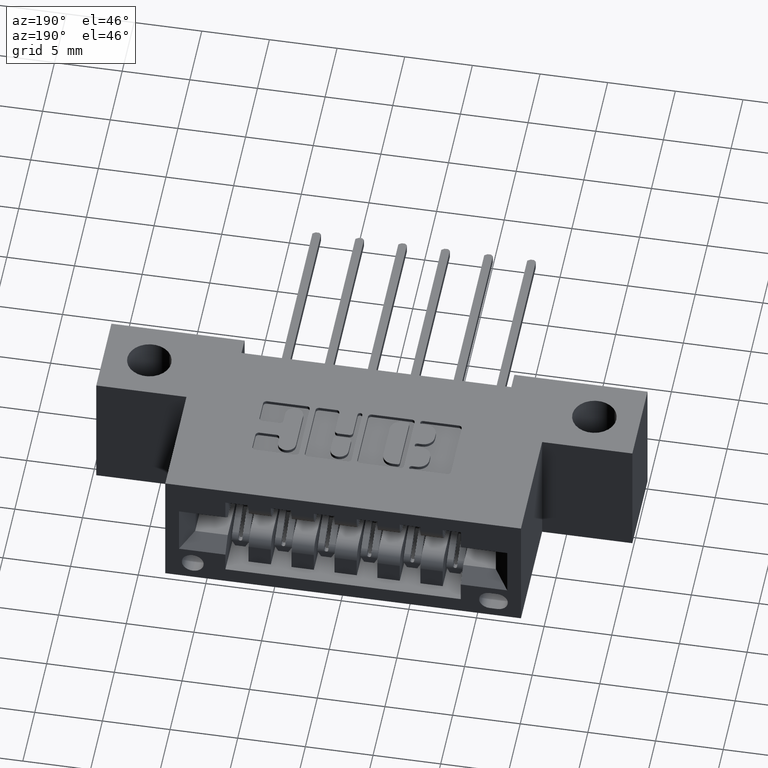
[diagram: clean part render]
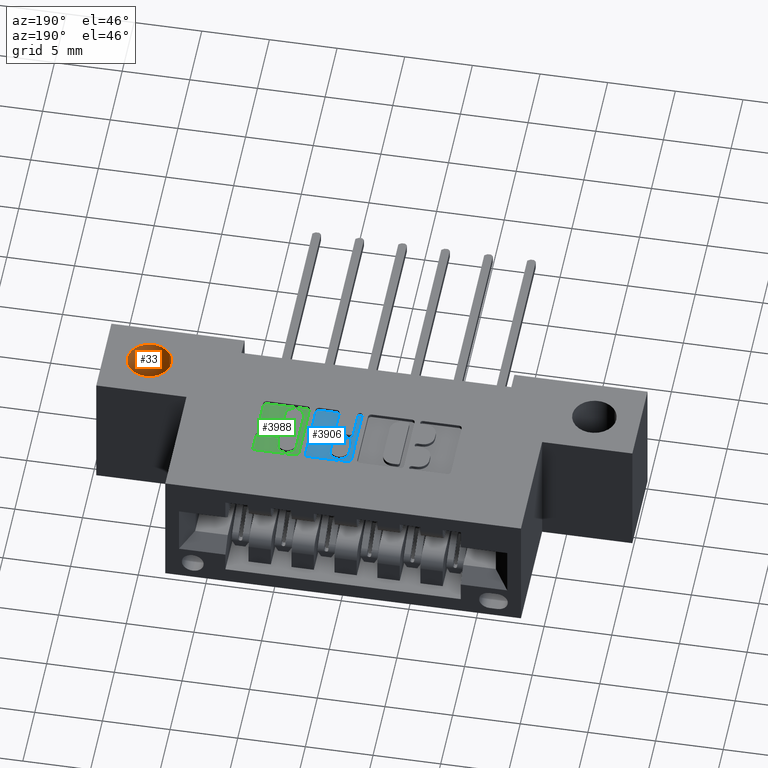
[diagram: same view with three faces highlighted in distinct colors, each labeled with its STEP entity id]
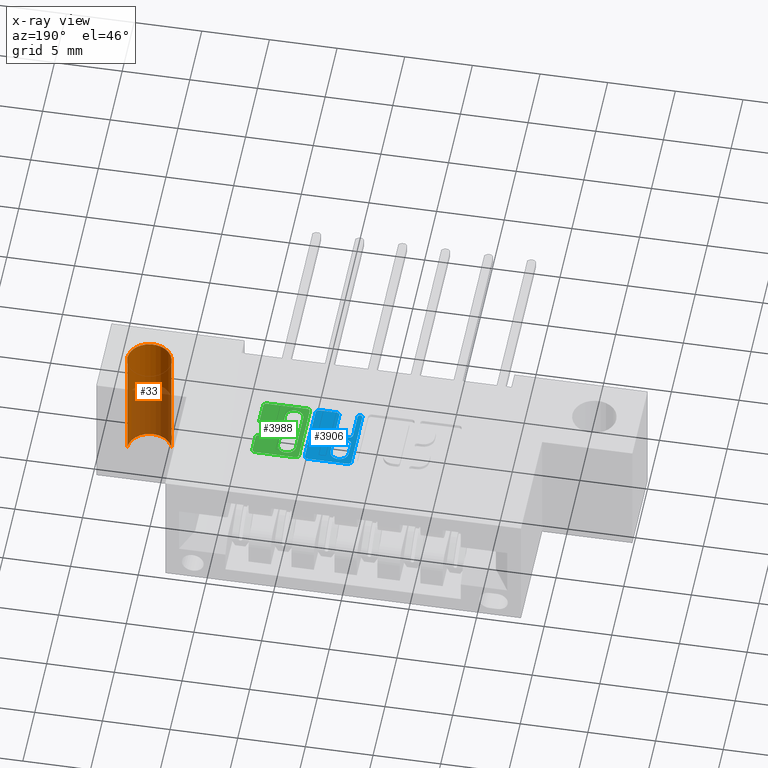
[diagram: x-ray of the same camera — body ghosted, the three highlighted faces saturated]
A machine part, auxiliary view with three faces highlighted in distinct colors.
The next image is the same camera in x-ray (body ghosted, the three faces saturated) — at least one of them is partly hidden behind the body in this view.
Their STEP definitions:

[orange] entity #33 — the highlighted cylindrical surface (edge-blend (fillet) strip) has radius 1.6256 mm, axis along (0, 0, 1).
#33 = ADVANCED_FACE ( 'NONE', ( #3620 ), #5655, .F. ) ;
#57 = ORIENTED_EDGE ( 'NONE', *, *, #1696, .F. ) ;
#64 = DIRECTION ( 'NONE',  ( -0.0000000000000000000, -0.0000000000000000000, 1.000000000000000000 ) ) ;
#182 = EDGE_CURVE ( 'NONE', #1452, #8396, #5912, .T. ) ;
#407 = CARTESIAN_POINT ( 'NONE',  ( 1.363499999999999268, 0.1250000000000001943, 0.0000000000000000000 ) ) ;
#461 = AXIS2_PLACEMENT_3D ( 'NONE', #7041, #1009, #3669 ) ;
#683 = DIRECTION ( 'NONE',  ( -0.0000000000000000000, -0.0000000000000000000, 1.000000000000000000 ) ) ;
#698 = CARTESIAN_POINT ( 'NONE',  ( 1.427499999999999991, 0.1250000000000001943, 0.0000000000000000000 ) ) ;
#965 = DIRECTION ( 'NONE',  ( 0.0000000000000000000, 0.0000000000000000000, 1.000000000000000000 ) ) ;
#1009 = DIRECTION ( 'NONE',  ( -0.0000000000000000000, -0.0000000000000000000, 1.000000000000000000 ) ) ;
#1082 = ORIENTED_EDGE ( 'NONE', *, *, #1276, .T. ) ;
#1243 = LINE ( 'NONE', #5312, #2982 ) ;
#1276 = EDGE_CURVE ( 'NONE', #5329, #1452, #1243, .T. ) ;
#1452 = VERTEX_POINT ( 'NONE', #407 ) ;
#1696 = EDGE_CURVE ( 'NONE', #5329, #6420, #6608, .T. ) ;
#2114 = ORIENTED_EDGE ( 'NONE', *, *, #2325, .F. ) ;
#2325 = EDGE_CURVE ( 'NONE', #6420, #8396, #2572, .T. ) ;
#2394 = DIRECTION ( 'NONE',  ( -1.000000000000000000, 0.0000000000000000000, 0.0000000000000000000 ) ) ;
#2466 = ORIENTED_EDGE ( 'NONE', *, *, #182, .T. ) ;
#2572 = LINE ( 'NONE', #6665, #7337 ) ;
#2845 = DIRECTION ( 'NONE',  ( 0.0000000000000000000, 0.0000000000000000000, 1.000000000000000000 ) ) ;
#2973 = AXIS2_PLACEMENT_3D ( 'NONE', #698, #2845, #8088 ) ;
#2982 = VECTOR ( 'NONE', #64, 39.37007874015748143 ) ;
#3620 = FACE_OUTER_BOUND ( 'NONE', #4115, .T. ) ;
#3669 = DIRECTION ( 'NONE',  ( 1.000000000000000000, 0.0000000000000000000, 0.0000000000000000000 ) ) ;
#3778 = CARTESIAN_POINT ( 'NONE',  ( 1.491500000000000714, 0.1250000000000001943, -0.3700000000000001621 ) ) ;
#4115 = EDGE_LOOP ( 'NONE', ( #57, #1082, #2466, #2114 ) ) ;
#5312 = CARTESIAN_POINT ( 'NONE',  ( 1.363499999999999268, 0.1250000000000001943, -0.3700000000000001621 ) ) ;
#5329 = VERTEX_POINT ( 'NONE', #5844 ) ;
#5655 = CYLINDRICAL_SURFACE ( 'NONE', #461, 0.06400000000000073686 ) ;
#5844 = CARTESIAN_POINT ( 'NONE',  ( 1.363499999999999268, 0.1250000000000001943, -0.3700000000000001621 ) ) ;
#5912 = CIRCLE ( 'NONE', #2973, 0.06400000000000073686 ) ;
#6420 = VERTEX_POINT ( 'NONE', #3778 ) ;
#6608 = CIRCLE ( 'NONE', #8395, 0.06400000000000073686 ) ;
#6665 = CARTESIAN_POINT ( 'NONE',  ( 1.491500000000000714, 0.1250000000000001943, -0.3700000000000001621 ) ) ;
#6945 = CARTESIAN_POINT ( 'NONE',  ( 1.427499999999999991, 0.1250000000000001943, -0.3700000000000001621 ) ) ;
#7041 = CARTESIAN_POINT ( 'NONE',  ( 1.427499999999999991, 0.1250000000000001943, -0.3700000000000001621 ) ) ;
#7337 = VECTOR ( 'NONE', #683, 39.37007874015748143 ) ;
#7387 = CARTESIAN_POINT ( 'NONE',  ( 1.491500000000000714, 0.1250000000000001943, 0.0000000000000000000 ) ) ;
#8088 = DIRECTION ( 'NONE',  ( -1.000000000000000000, 0.0000000000000000000, 0.0000000000000000000 ) ) ;
#8395 = AXIS2_PLACEMENT_3D ( 'NONE', #6945, #965, #2394 ) ;
#8396 = VERTEX_POINT ( 'NONE', #7387 ) ;

[blue] entity #3906 — the highlighted planar face has unit normal (0, 0, 1).
#11 = ORIENTED_EDGE ( 'NONE', *, *, #2286, .F. ) ;
#38 = DIRECTION ( 'NONE',  ( -0.0000000000000000000, 0.0000000000000000000, 1.000000000000000000 ) ) ;
#66 = VERTEX_POINT ( 'NONE', #486 ) ;
#86 = CARTESIAN_POINT ( 'NONE',  ( 0.8548444853039848246, 0.2366589681657876310, -0.01000000000000000021 ) ) ;
#122 = VERTEX_POINT ( 'NONE', #8538 ) ;
#192 = DIRECTION ( 'NONE',  ( 0.0000000000000000000, 1.000000000000000000, -0.0000000000000000000 ) ) ;
#219 = VERTEX_POINT ( 'NONE', #86 ) ;
#235 = VECTOR ( 'NONE', #3811, 39.37007874015748143 ) ;
#264 = EDGE_CURVE ( 'NONE', #3398, #8177, #7546, .T. ) ;
#265 = ORIENTED_EDGE ( 'NONE', *, *, #5520, .F. ) ;
#282 = ORIENTED_EDGE ( 'NONE', *, *, #4109, .T. ) ;
#296 = CARTESIAN_POINT ( 'NONE',  ( 0.8121463199174504544, 0.3083133606535453652, -0.01000000000000000021 ) ) ;
#345 = EDGE_CURVE ( 'NONE', #5016, #386, #6874, .T. ) ;
#365 = CARTESIAN_POINT ( 'NONE',  ( 0.8548444853039848246, 0.0000000000000000000, -0.01000000000000000021 ) ) ;
#386 = VERTEX_POINT ( 'NONE', #1086 ) ;
#435 = DIRECTION ( 'NONE',  ( -0.0000000000000000000, 0.0000000000000000000, 1.000000000000000000 ) ) ;
#447 = DIRECTION ( 'NONE',  ( -1.000000000000000000, -4.153954829891640784E-15, 0.0000000000000000000 ) ) ;
#486 = CARTESIAN_POINT ( 'NONE',  ( 0.8023306497136470927, 0.3416866393464885188, -0.01000000000000000021 ) ) ;
#750 = ORIENTED_EDGE ( 'NONE', *, *, #7087, .T. ) ;
#810 = DIRECTION ( 'NONE',  ( 0.0000000000000000000, -1.000000000000000000, 0.0000000000000000000 ) ) ;
#881 = ORIENTED_EDGE ( 'NONE', *, *, #1164, .T. ) ;
#944 = LINE ( 'NONE', #1081, #4548 ) ;
#995 = ORIENTED_EDGE ( 'NONE', *, *, #5131, .T. ) ;
#1050 = VERTEX_POINT ( 'NONE', #6712 ) ;
#1076 = AXIS2_PLACEMENT_3D ( 'NONE', #8459, #7253, #5174 ) ;
#1081 = CARTESIAN_POINT ( 'NONE',  ( 0.0000000000000000000, 0.4231567020380064270, -0.01000000000000000021 ) ) ;
#1086 = CARTESIAN_POINT ( 'NONE',  ( 0.8450288151001883463, 0.3181290308573496151, -0.01000000000000000021 ) ) ;
#1164 = EDGE_CURVE ( 'NONE', #3398, #122, #2708, .T. ) ;
#1244 = AXIS2_PLACEMENT_3D ( 'NONE', #3178, #4649, #6618 ) ;
#1313 = AXIS2_PLACEMENT_3D ( 'NONE', #7832, #4194, #3867 ) ;
#1352 = EDGE_CURVE ( 'NONE', #219, #5016, #5069, .T. ) ;
#1397 = DIRECTION ( 'NONE',  ( 1.000000000000000000, 0.0000000000000000000, 0.0000000000000000000 ) ) ;
#1404 = DIRECTION ( 'NONE',  ( -1.000000000000000000, -3.530861605407645268E-14, 0.0000000000000000000 ) ) ;
#1412 = CIRCLE ( 'NONE', #2104, 0.009815670203803203778 ) ;
#1460 = EDGE_CURVE ( 'NONE', #6833, #4188, #6050, .T. ) ;
#1590 = AXIS2_PLACEMENT_3D ( 'NONE', #3660, #435, #4377 ) ;
#1602 = DIRECTION ( 'NONE',  ( 0.0000000000000000000, -1.000000000000000000, 0.0000000000000000000 ) ) ;
#1672 = ORIENTED_EDGE ( 'NONE', *, *, #5554, .T. ) ;
#1695 = DIRECTION ( 'NONE',  ( 1.000000000000000000, 0.0000000000000000000, 0.0000000000000000000 ) ) ;
#1697 = ORIENTED_EDGE ( 'NONE', *, *, #6504, .T. ) ;
#1703 = LINE ( 'NONE', #6448, #3650 ) ;
#1781 = VERTEX_POINT ( 'NONE', #5513 ) ;
#1823 = CIRCLE ( 'NONE', #1244, 0.02625691779516779734 ) ;
#1835 = ORIENTED_EDGE ( 'NONE', *, *, #345, .F. ) ;
#2056 = EDGE_CURVE ( 'NONE', #386, #8337, #3321, .T. ) ;
#2094 = CIRCLE ( 'NONE', #5008, 0.009815670203803340821 ) ;
#2097 = VERTEX_POINT ( 'NONE', #4278 ) ;
#2098 = EDGE_CURVE ( 'NONE', #8337, #2310, #2452, .T. ) ;
#2104 = AXIS2_PLACEMENT_3D ( 'NONE', #3976, #5388, #2635 ) ;
#2286 = EDGE_CURVE ( 'NONE', #7718, #4416, #944, .T. ) ;
#2310 = VERTEX_POINT ( 'NONE', #4659 ) ;
#2344 = DIRECTION ( 'NONE',  ( 0.0000000000000000000, 1.000000000000000000, -0.0000000000000000000 ) ) ;
#2372 = DIRECTION ( 'NONE',  ( -0.0000000000000000000, 0.0000000000000000000, 1.000000000000000000 ) ) ;
#2383 = ORIENTED_EDGE ( 'NONE', *, *, #8196, .T. ) ;
#2452 = CIRCLE ( 'NONE', #4933, 0.009815670203803203778 ) ;
#2532 = VERTEX_POINT ( 'NONE', #5963 ) ;
#2635 = DIRECTION ( 'NONE',  ( 1.000000000000000000, 0.0000000000000000000, 0.0000000000000000000 ) ) ;
#2687 = ORIENTED_EDGE ( 'NONE', *, *, #264, .F. ) ;
#2689 = DIRECTION ( 'NONE',  ( -0.0000000000000000000, 0.0000000000000000000, 1.000000000000000000 ) ) ;
#2708 = CIRCLE ( 'NONE', #6169, 0.006870969142657995000 ) ;
#2758 = AXIS2_PLACEMENT_3D ( 'NONE', #4593, #3813, #6484 ) ;
#2794 = ORIENTED_EDGE ( 'NONE', *, *, #7015, .F. ) ;
#2856 = CARTESIAN_POINT ( 'NONE',  ( 0.8121463199174504544, 0.3181290308573484493, -0.01000000000000000021 ) ) ;
#2861 = CARTESIAN_POINT ( 'NONE',  ( 0.9240449602408069563, 0.2366589681657806643, -0.01000000000000000021 ) ) ;
#2939 = CARTESIAN_POINT ( 'NONE',  ( 0.7885887114283310906, 0.2337142671046477660, -0.01000000000000000021 ) ) ;
#3058 = CARTESIAN_POINT ( 'NONE',  ( 0.7885887114283310906, 0.0000000000000000000, -0.01000000000000000021 ) ) ;
#3136 = VECTOR ( 'NONE', #1404, 39.37007874015748143 ) ;
#3178 = CARTESIAN_POINT ( 'NONE',  ( 0.8285875675088119063, 0.3826670498449319946, -0.01000000000000000021 ) ) ;
#3250 = VECTOR ( 'NONE', #5644, 39.37007874015748143 ) ;
#3272 = EDGE_CURVE ( 'NONE', #66, #1050, #2094, .T. ) ;
#3321 = LINE ( 'NONE', #7372, #3136 ) ;
#3396 = EDGE_LOOP ( 'NONE', ( #11, #750, #2687, #881, #265, #5184, #6860, #1835, #7897, #282, #2794, #995, #7604, #2383 ) ) ;
#3398 = VERTEX_POINT ( 'NONE', #2939 ) ;
#3511 = VECTOR ( 'NONE', #2344, 39.37007874015748143 ) ;
#3512 = ORIENTED_EDGE ( 'NONE', *, *, #3272, .F. ) ;
#3602 = DIRECTION ( 'NONE',  ( 1.000000000000000000, 0.0000000000000000000, 0.0000000000000000000 ) ) ;
#3648 = DIRECTION ( 'NONE',  ( 0.0000000000000000000, -1.000000000000000000, 0.0000000000000000000 ) ) ;
#3650 = VECTOR ( 'NONE', #3648, 39.37007874015748143 ) ;
#3660 = CARTESIAN_POINT ( 'NONE',  ( 0.8450288151001879022, 0.3083133606535526372, -0.01000000000000000021 ) ) ;
#3703 = EDGE_CURVE ( 'NONE', #2097, #5397, #8156, .T. ) ;
#3756 = LINE ( 'NONE', #6425, #5185 ) ;
#3811 = DIRECTION ( 'NONE',  ( -1.000000000000000000, 0.0000000000000000000, 0.0000000000000000000 ) ) ;
#3813 = DIRECTION ( 'NONE',  ( -0.0000000000000000000, 0.0000000000000000000, 1.000000000000000000 ) ) ;
#3867 = DIRECTION ( 'NONE',  ( 1.000000000000000000, 0.0000000000000000000, 0.0000000000000000000 ) ) ;
#3893 = LINE ( 'NONE', #5797, #235 ) ;
#3906 = ADVANCED_FACE ( 'NONE', ( #5406, #3995 ), #4658, .T. ) ;
#3976 = CARTESIAN_POINT ( 'NONE',  ( 0.8646601555077881862, 0.2366589681657876310, -0.01000000000000000021 ) ) ;
#3987 = LINE ( 'NONE', #5396, #5332 ) ;
#3995 = FACE_OUTER_BOUND ( 'NONE', #3396, .T. ) ;
#4085 = DIRECTION ( 'NONE',  ( 1.000000000000000000, 0.0000000000000000000, 0.0000000000000000000 ) ) ;
#4106 = CARTESIAN_POINT ( 'NONE',  ( 0.8548444853039823821, 0.3416866393464817464, -0.01000000000000000021 ) ) ;
#4109 = EDGE_CURVE ( 'NONE', #219, #2532, #1412, .T. ) ;
#4188 = VERTEX_POINT ( 'NONE', #4106 ) ;
#4194 = DIRECTION ( 'NONE',  ( -0.0000000000000000000, 0.0000000000000000000, 1.000000000000000000 ) ) ;
#4268 = CARTESIAN_POINT ( 'NONE',  ( 0.8548444853039823821, 0.3826670498449319946, -0.01000000000000000021 ) ) ;
#4278 = CARTESIAN_POINT ( 'NONE',  ( 0.9240449602408069563, 0.4133410318342007894, -0.01000000000000000021 ) ) ;
#4305 = CARTESIAN_POINT ( 'NONE',  ( 0.7885887114283310906, 0.4133410318342099488, -0.01000000000000000021 ) ) ;
#4377 = DIRECTION ( 'NONE',  ( 1.000000000000000000, 0.0000000000000000000, 0.0000000000000000000 ) ) ;
#4416 = VERTEX_POINT ( 'NONE', #7659 ) ;
#4548 = VECTOR ( 'NONE', #3602, 39.37007874015748143 ) ;
#4593 = CARTESIAN_POINT ( 'NONE',  ( 0.9142292900370118103, 0.4133410318342102263, -0.01000000000000000021 ) ) ;
#4608 = DIRECTION ( 'NONE',  ( -0.0000000000000000000, 0.0000000000000000000, 1.000000000000000000 ) ) ;
#4649 = DIRECTION ( 'NONE',  ( -0.0000000000000000000, 0.0000000000000000000, 1.000000000000000000 ) ) ;
#4658 = PLANE ( 'NONE',  #6965 ) ;
#4659 = CARTESIAN_POINT ( 'NONE',  ( 0.8023306497136470927, 0.3083133606535453652, -0.01000000000000000021 ) ) ;
#4765 = CIRCLE ( 'NONE', #5176, 0.009815670203796237128 ) ;
#4783 = CARTESIAN_POINT ( 'NONE',  ( 0.8548444853039848246, 0.3083133606535432558, -0.01000000000000000021 ) ) ;
#4823 = VERTEX_POINT ( 'NONE', #7147 ) ;
#4933 = AXIS2_PLACEMENT_3D ( 'NONE', #296, #2372, #5590 ) ;
#5008 = AXIS2_PLACEMENT_3D ( 'NONE', #8009, #2689, #7506 ) ;
#5016 = VERTEX_POINT ( 'NONE', #4783 ) ;
#5069 = LINE ( 'NONE', #365, #3511 ) ;
#5131 = EDGE_CURVE ( 'NONE', #4823, #5397, #4765, .T. ) ;
#5174 = DIRECTION ( 'NONE',  ( 1.000000000000000000, 0.0000000000000000000, 0.0000000000000000000 ) ) ;
#5176 = AXIS2_PLACEMENT_3D ( 'NONE', #6131, #38, #1397 ) ;
#5184 = ORIENTED_EDGE ( 'NONE', *, *, #2098, .F. ) ;
#5185 = VECTOR ( 'NONE', #447, 39.37007874015748143 ) ;
#5332 = VECTOR ( 'NONE', #192, 39.37007874015748143 ) ;
#5388 = DIRECTION ( 'NONE',  ( -0.0000000000000000000, 0.0000000000000000000, 1.000000000000000000 ) ) ;
#5396 = CARTESIAN_POINT ( 'NONE',  ( 0.8023306497136470927, 0.0000000000000000000, -0.01000000000000000021 ) ) ;
#5397 = VERTEX_POINT ( 'NONE', #2861 ) ;
#5406 = FACE_BOUND ( 'NONE', #6328, .T. ) ;
#5472 = EDGE_CURVE ( 'NONE', #66, #1781, #3987, .T. ) ;
#5513 = CARTESIAN_POINT ( 'NONE',  ( 0.8023306497136470927, 0.3826670624473477722, -0.01000000000000000021 ) ) ;
#5520 = EDGE_CURVE ( 'NONE', #2310, #122, #5786, .T. ) ;
#5524 = CARTESIAN_POINT ( 'NONE',  ( 0.8023306497136470927, 0.0000000000000000000, -0.01000000000000000021 ) ) ;
#5554 = EDGE_CURVE ( 'NONE', #6833, #1050, #3756, .T. ) ;
#5576 = CARTESIAN_POINT ( 'NONE',  ( 0.9240449602408069563, 0.0000000000000000000, -0.01000000000000000021 ) ) ;
#5590 = DIRECTION ( 'NONE',  ( 1.000000000000000000, 0.0000000000000000000, 0.0000000000000000000 ) ) ;
#5644 = DIRECTION ( 'NONE',  ( 0.0000000000000000000, 1.000000000000000000, -0.0000000000000000000 ) ) ;
#5786 = LINE ( 'NONE', #5524, #6432 ) ;
#5797 = CARTESIAN_POINT ( 'NONE',  ( 0.0000000000000000000, 0.2268432979619844359, -0.01000000000000000021 ) ) ;
#5963 = CARTESIAN_POINT ( 'NONE',  ( 0.8646601555077858547, 0.2268432979619844359, -0.01000000000000000021 ) ) ;
#6050 = CIRCLE ( 'NONE', #1313, 0.009815670203796374171 ) ;
#6131 = CARTESIAN_POINT ( 'NONE',  ( 0.9142292900370107001, 0.2366589681657806643, -0.01000000000000000021 ) ) ;
#6169 = AXIS2_PLACEMENT_3D ( 'NONE', #7055, #6398, #1695 ) ;
#6328 = EDGE_LOOP ( 'NONE', ( #6336, #1697, #7988, #1672, #3512, #7304 ) ) ;
#6336 = ORIENTED_EDGE ( 'NONE', *, *, #6626, .F. ) ;
#6398 = DIRECTION ( 'NONE',  ( -0.0000000000000000000, 0.0000000000000000000, 1.000000000000000000 ) ) ;
#6406 = CARTESIAN_POINT ( 'NONE',  ( 0.7984043816321275688, 0.4231567020380064270, -0.01000000000000000021 ) ) ;
#6425 = CARTESIAN_POINT ( 'NONE',  ( -1.378577015171062865E-15, 0.3318709691426818265, -0.01000000000000000021 ) ) ;
#6432 = VECTOR ( 'NONE', #1602, 39.37007874015748143 ) ;
#6448 = CARTESIAN_POINT ( 'NONE',  ( 0.8548444853039823821, 0.0000000000000000000, -0.01000000000000000021 ) ) ;
#6484 = DIRECTION ( 'NONE',  ( 1.000000000000000000, 0.0000000000000000000, 0.0000000000000000000 ) ) ;
#6504 = EDGE_CURVE ( 'NONE', #6591, #4188, #1703, .T. ) ;
#6591 = VERTEX_POINT ( 'NONE', #4268 ) ;
#6618 = DIRECTION ( 'NONE',  ( 1.000000000000000000, 0.0000000000000000000, 0.0000000000000000000 ) ) ;
#6626 = EDGE_CURVE ( 'NONE', #6591, #1781, #1823, .T. ) ;
#6712 = CARTESIAN_POINT ( 'NONE',  ( 0.8121463199174504544, 0.3318709691426852126, -0.01000000000000000021 ) ) ;
#6793 = CIRCLE ( 'NONE', #1076, 0.009815670203796511215 ) ;
#6833 = VERTEX_POINT ( 'NONE', #8280 ) ;
#6860 = ORIENTED_EDGE ( 'NONE', *, *, #2056, .F. ) ;
#6874 = CIRCLE ( 'NONE', #1590, 0.009815670203796920609 ) ;
#6965 = AXIS2_PLACEMENT_3D ( 'NONE', #7453, #4608, #4085 ) ;
#7015 = EDGE_CURVE ( 'NONE', #4823, #2532, #3893, .T. ) ;
#7055 = CARTESIAN_POINT ( 'NONE',  ( 0.7954596805709871488, 0.2337142671046477660, -0.01000000000000000021 ) ) ;
#7087 = EDGE_CURVE ( 'NONE', #7718, #8177, #6793, .T. ) ;
#7147 = CARTESIAN_POINT ( 'NONE',  ( 0.9142292900370107001, 0.2268432979619844359, -0.01000000000000000021 ) ) ;
#7253 = DIRECTION ( 'NONE',  ( -0.0000000000000000000, 0.0000000000000000000, 1.000000000000000000 ) ) ;
#7304 = ORIENTED_EDGE ( 'NONE', *, *, #5472, .T. ) ;
#7372 = CARTESIAN_POINT ( 'NONE',  ( -1.123269580619654387E-14, 0.3181290308573197501, -0.01000000000000000021 ) ) ;
#7453 = CARTESIAN_POINT ( 'NONE',  ( 0.0000000000000000000, 0.0000000000000000000, -0.01000000000000000021 ) ) ;
#7506 = DIRECTION ( 'NONE',  ( 1.000000000000000000, 0.0000000000000000000, 0.0000000000000000000 ) ) ;
#7546 = LINE ( 'NONE', #3058, #3250 ) ;
#7604 = ORIENTED_EDGE ( 'NONE', *, *, #3703, .F. ) ;
#7659 = CARTESIAN_POINT ( 'NONE',  ( 0.9142292900370141417, 0.4231567020380064270, -0.01000000000000000021 ) ) ;
#7718 = VERTEX_POINT ( 'NONE', #6406 ) ;
#7832 = CARTESIAN_POINT ( 'NONE',  ( 0.8450288151001860149, 0.3416866393464817464, -0.01000000000000000021 ) ) ;
#7897 = ORIENTED_EDGE ( 'NONE', *, *, #1352, .F. ) ;
#7988 = ORIENTED_EDGE ( 'NONE', *, *, #1460, .F. ) ;
#8009 = CARTESIAN_POINT ( 'NONE',  ( 0.8121463199174504544, 0.3416866393464885188, -0.01000000000000000021 ) ) ;
#8150 = CIRCLE ( 'NONE', #2758, 0.009815670203795690690 ) ;
#8156 = LINE ( 'NONE', #5576, #8192 ) ;
#8177 = VERTEX_POINT ( 'NONE', #4305 ) ;
#8192 = VECTOR ( 'NONE', #810, 39.37007874015748143 ) ;
#8196 = EDGE_CURVE ( 'NONE', #2097, #4416, #8150, .T. ) ;
#8280 = CARTESIAN_POINT ( 'NONE',  ( 0.8450288151001860149, 0.3318709691426853237, -0.01000000000000000021 ) ) ;
#8337 = VERTEX_POINT ( 'NONE', #2856 ) ;
#8459 = CARTESIAN_POINT ( 'NONE',  ( 0.7984043816321275688, 0.4133410318342099488, -0.01000000000000000021 ) ) ;
#8538 = CARTESIAN_POINT ( 'NONE',  ( 0.8023306497136470927, 0.2337142671046477660, -0.01000000000000000021 ) ) ;

[green] entity #3988 — the highlighted planar face has unit normal (0, 0, 1).
#32 = CARTESIAN_POINT ( 'NONE',  ( 1.076678631909940398, 0.2965345564089702513, -0.01000000000000000021 ) ) ;
#82 = DIRECTION ( 'NONE',  ( -1.000000000000000000, 0.0000000000000000000, 0.0000000000000000000 ) ) ;
#99 = LINE ( 'NONE', #5610, #4520 ) ;
#167 = CIRCLE ( 'NONE', #4921, 0.02625691779518036367 ) ;
#308 = DIRECTION ( 'NONE',  ( 1.000000000000000000, 0.0000000000000000000, 0.0000000000000000000 ) ) ;
#311 = CARTESIAN_POINT ( 'NONE',  ( 1.066862961706132262, 0.4133410318342107259, -0.01000000000000000021 ) ) ;
#339 = VERTEX_POINT ( 'NONE', #1664 ) ;
#364 = VERTEX_POINT ( 'NONE', #7026 ) ;
#382 = CARTESIAN_POINT ( 'NONE',  ( 0.0000000000000000000, 0.3539562271012334227, -0.01000000000000000021 ) ) ;
#400 = LINE ( 'NONE', #2295, #1989 ) ;
#480 = CARTESIAN_POINT ( 'NONE',  ( 1.007478156973166117, 0.0000000000000000000, -0.01000000000000000021 ) ) ;
#483 = VERTEX_POINT ( 'NONE', #3958 ) ;
#502 = ORIENTED_EDGE ( 'NONE', *, *, #7060, .T. ) ;
#583 = CIRCLE ( 'NONE', #5467, 0.009815670203840083999 ) ;
#595 = EDGE_CURVE ( 'NONE', #1570, #7364, #583, .T. ) ;
#610 = CARTESIAN_POINT ( 'NONE',  ( 1.066862961706153135, 0.2965345564089702513, -0.01000000000000000021 ) ) ;
#627 = EDGE_CURVE ( 'NONE', #7291, #364, #167, .T. ) ;
#666 = VERTEX_POINT ( 'NONE', #1132 ) ;
#738 = LINE ( 'NONE', #8168, #1019 ) ;
#772 = VERTEX_POINT ( 'NONE', #6647 ) ;
#922 = CARTESIAN_POINT ( 'NONE',  ( 0.9549643213828186150, 0.2668421540424528171, -0.01000000000000000021 ) ) ;
#937 = VERTEX_POINT ( 'NONE', #4568 ) ;
#1019 = VECTOR ( 'NONE', #82, 39.37007874015748143 ) ;
#1132 = CARTESIAN_POINT ( 'NONE',  ( 1.066862961706156687, 0.3063502266127573481, -0.01000000000000000021 ) ) ;
#1146 = CIRCLE ( 'NONE', #6592, 0.009815670203804980135 ) ;
#1172 = ORIENTED_EDGE ( 'NONE', *, *, #3814, .T. ) ;
#1193 = DIRECTION ( 'NONE',  ( 1.000000000000000000, 0.0000000000000000000, 0.0000000000000000000 ) ) ;
#1261 = CIRCLE ( 'NONE', #4035, 0.009815670203806754757 ) ;
#1347 = CARTESIAN_POINT ( 'NONE',  ( 0.9510380533012655624, 0.2366589681657897681, -0.01000000000000000021 ) ) ;
#1373 = AXIS2_PLACEMENT_3D ( 'NONE', #3246, #7780, #4556 ) ;
#1564 = VECTOR ( 'NONE', #5735, 39.37007874015748143 ) ;
#1570 = VERTEX_POINT ( 'NONE', #4037 ) ;
#1633 = CARTESIAN_POINT ( 'NONE',  ( 0.0000000000000000000, 0.2268432979619829926, -0.01000000000000000021 ) ) ;
#1649 = DIRECTION ( 'NONE',  ( 1.000000000000000000, 0.0000000000000000000, 0.0000000000000000000 ) ) ;
#1664 = CARTESIAN_POINT ( 'NONE',  ( 1.066862961706134483, 0.2268432979619829926, -0.01000000000000000021 ) ) ;
#1668 = EDGE_CURVE ( 'NONE', #772, #364, #99, .T. ) ;
#1674 = DIRECTION ( 'NONE',  ( 1.000000000000000000, 0.0000000000000000000, 0.0000000000000000000 ) ) ;
#1684 = DIRECTION ( 'NONE',  ( 0.0000000000000000000, 1.000000000000000000, -0.0000000000000000000 ) ) ;
#1731 = EDGE_CURVE ( 'NONE', #7476, #772, #6879, .T. ) ;
#1798 = EDGE_CURVE ( 'NONE', #4892, #339, #3568, .T. ) ;
#1804 = VERTEX_POINT ( 'NONE', #7689 ) ;
#1894 = EDGE_CURVE ( 'NONE', #7291, #1804, #2506, .T. ) ;
#1965 = VECTOR ( 'NONE', #5088, 39.37007874015748143 ) ;
#1989 = VECTOR ( 'NONE', #3607, 39.37007874015748143 ) ;
#2019 = ORIENTED_EDGE ( 'NONE', *, *, #2548, .T. ) ;
#2036 = EDGE_CURVE ( 'NONE', #666, #7476, #6103, .T. ) ;
#2070 = VERTEX_POINT ( 'NONE', #5544 ) ;
#2158 = AXIS2_PLACEMENT_3D ( 'NONE', #5834, #7934, #4466 ) ;
#2295 = CARTESIAN_POINT ( 'NONE',  ( 0.9412223830974587591, 0.0000000000000000000, -0.01000000000000000021 ) ) ;
#2299 = EDGE_CURVE ( 'NONE', #339, #5591, #2474, .T. ) ;
#2343 = VERTEX_POINT ( 'NONE', #32 ) ;
#2347 = ORIENTED_EDGE ( 'NONE', *, *, #5953, .T. ) ;
#2371 = ORIENTED_EDGE ( 'NONE', *, *, #1731, .T. ) ;
#2469 = CARTESIAN_POINT ( 'NONE',  ( 1.076678631909940398, 0.2366589681657828015, -0.01000000000000000021 ) ) ;
#2474 = CIRCLE ( 'NONE', #3021, 0.009815670203806345362 ) ;
#2505 = VERTEX_POINT ( 'NONE', #7389 ) ;
#2506 = LINE ( 'NONE', #4502, #4666 ) ;
#2548 = EDGE_CURVE ( 'NONE', #3670, #937, #1146, .T. ) ;
#2560 = DIRECTION ( 'NONE',  ( -0.0000000000000000000, 0.0000000000000000000, 1.000000000000000000 ) ) ;
#2619 = CARTESIAN_POINT ( 'NONE',  ( 0.9510380533012655624, 0.2268432979619829926, -0.01000000000000000021 ) ) ;
#2623 = EDGE_CURVE ( 'NONE', #937, #1570, #8191, .T. ) ;
#2720 = CIRCLE ( 'NONE', #5219, 0.009815670203787221770 ) ;
#2809 = EDGE_CURVE ( 'NONE', #2343, #666, #2720, .T. ) ;
#2862 = EDGE_CURVE ( 'NONE', #7364, #2070, #738, .T. ) ;
#2867 = PLANE ( 'NONE',  #4341 ) ;
#2886 = ORIENTED_EDGE ( 'NONE', *, *, #595, .T. ) ;
#2928 = CARTESIAN_POINT ( 'NONE',  ( 0.9812212391779989717, 0.2668421540424528171, -0.01000000000000000021 ) ) ;
#3021 = AXIS2_PLACEMENT_3D ( 'NONE', #8562, #8609, #5281 ) ;
#3070 = DIRECTION ( 'NONE',  ( 1.000000000000000000, 0.0000000000000000000, 0.0000000000000000000 ) ) ;
#3086 = LINE ( 'NONE', #382, #7796 ) ;
#3246 = CARTESIAN_POINT ( 'NONE',  ( 1.017293827176977805, 0.3637718973050450000, -0.01000000000000000021 ) ) ;
#3255 = CARTESIAN_POINT ( 'NONE',  ( 0.9812212391779924214, 0.3831578459575294415, -0.01000000000000000021 ) ) ;
#3380 = CARTESIAN_POINT ( 'NONE',  ( 0.9510380533012996462, 0.4133410318342099488, -0.01000000000000000021 ) ) ;
#3393 = ORIENTED_EDGE ( 'NONE', *, *, #2299, .T. ) ;
#3568 = LINE ( 'NONE', #1633, #4101 ) ;
#3582 = EDGE_CURVE ( 'NONE', #2070, #2505, #5583, .T. ) ;
#3607 = DIRECTION ( 'NONE',  ( 0.0000000000000000000, -1.000000000000000000, 0.0000000000000000000 ) ) ;
#3670 = VERTEX_POINT ( 'NONE', #6093 ) ;
#3682 = EDGE_CURVE ( 'NONE', #8332, #4892, #1261, .T. ) ;
#3764 = EDGE_CURVE ( 'NONE', #5591, #2343, #7053, .T. ) ;
#3814 = EDGE_CURVE ( 'NONE', #4334, #3670, #3086, .T. ) ;
#3850 = CARTESIAN_POINT ( 'NONE',  ( 1.076678631909940398, 0.0000000000000000000, -0.01000000000000000021 ) ) ;
#3902 = DIRECTION ( 'NONE',  ( 1.000000000000000000, 0.0000000000000000000, 0.0000000000000000000 ) ) ;
#3922 = DIRECTION ( 'NONE',  ( 0.0000000000000000000, 1.000000000000000000, -0.0000000000000000000 ) ) ;
#3934 = ORIENTED_EDGE ( 'NONE', *, *, #3682, .T. ) ;
#3958 = CARTESIAN_POINT ( 'NONE',  ( 1.007478156973166117, 0.3831578454992597416, -0.01000000000000000021 ) ) ;
#3988 = ADVANCED_FACE ( 'NONE', ( #4214 ), #2867, .T. ) ;
#4027 = CARTESIAN_POINT ( 'NONE',  ( 1.066862961706167345, 0.3637718973050384497, -0.01000000000000000021 ) ) ;
#4035 = AXIS2_PLACEMENT_3D ( 'NONE', #1347, #7221, #6174 ) ;
#4037 = CARTESIAN_POINT ( 'NONE',  ( 1.076678631909972372, 0.4133410318341946277, -0.01000000000000000021 ) ) ;
#4039 = ORIENTED_EDGE ( 'NONE', *, *, #1798, .T. ) ;
#4101 = VECTOR ( 'NONE', #308, 39.37007874015748143 ) ;
#4137 = CARTESIAN_POINT ( 'NONE',  ( 0.0000000000000000000, 0.3063502266127573481, -0.01000000000000000021 ) ) ;
#4214 = FACE_OUTER_BOUND ( 'NONE', #8604, .T. ) ;
#4334 = VERTEX_POINT ( 'NONE', #5432 ) ;
#4341 = AXIS2_PLACEMENT_3D ( 'NONE', #7658, #8116, #1649 ) ;
#4466 = DIRECTION ( 'NONE',  ( 1.000000000000000000, 0.0000000000000000000, 0.0000000000000000000 ) ) ;
#4502 = CARTESIAN_POINT ( 'NONE',  ( 0.9549643213828186150, 0.0000000000000000000, -0.01000000000000000021 ) ) ;
#4520 = VECTOR ( 'NONE', #6914, 39.37007874015748143 ) ;
#4556 = DIRECTION ( 'NONE',  ( 1.000000000000000000, 0.0000000000000000000, 0.0000000000000000000 ) ) ;
#4568 = CARTESIAN_POINT ( 'NONE',  ( 1.076678631909972372, 0.3637718973050384497, -0.01000000000000000021 ) ) ;
#4666 = VECTOR ( 'NONE', #3922, 39.37007874015748143 ) ;
#4725 = DIRECTION ( 'NONE',  ( 1.000000000000000000, 0.0000000000000000000, 0.0000000000000000000 ) ) ;
#4767 = EDGE_CURVE ( 'NONE', #2505, #8332, #400, .T. ) ;
#4796 = ORIENTED_EDGE ( 'NONE', *, *, #627, .F. ) ;
#4892 = VERTEX_POINT ( 'NONE', #2619 ) ;
#4921 = AXIS2_PLACEMENT_3D ( 'NONE', #2928, #6382, #3070 ) ;
#4935 = DIRECTION ( 'NONE',  ( -0.0000000000000000000, 0.0000000000000000000, 1.000000000000000000 ) ) ;
#5088 = DIRECTION ( 'NONE',  ( 0.0000000000000000000, 1.000000000000000000, -0.0000000000000000000 ) ) ;
#5106 = ORIENTED_EDGE ( 'NONE', *, *, #2623, .T. ) ;
#5160 = ORIENTED_EDGE ( 'NONE', *, *, #4767, .T. ) ;
#5219 = AXIS2_PLACEMENT_3D ( 'NONE', #610, #6635, #8575 ) ;
#5281 = DIRECTION ( 'NONE',  ( 1.000000000000000000, 0.0000000000000000000, 0.0000000000000000000 ) ) ;
#5432 = CARTESIAN_POINT ( 'NONE',  ( 1.017293827176977805, 0.3539562271012334227, -0.01000000000000000021 ) ) ;
#5448 = CARTESIAN_POINT ( 'NONE',  ( 1.007478156973166117, 0.3637718973050450000, -0.01000000000000000021 ) ) ;
#5467 = AXIS2_PLACEMENT_3D ( 'NONE', #311, #4935, #1674 ) ;
#5544 = CARTESIAN_POINT ( 'NONE',  ( 0.9510380533012996462, 0.4231567020380508359, -0.01000000000000000021 ) ) ;
#5583 = CIRCLE ( 'NONE', #7385, 0.009815670203840902788 ) ;
#5591 = VERTEX_POINT ( 'NONE', #2469 ) ;
#5610 = CARTESIAN_POINT ( 'NONE',  ( 1.007478156973179217, 0.0000000000000000000, -0.01000000000000000021 ) ) ;
#5661 = CARTESIAN_POINT ( 'NONE',  ( 1.076678631909972372, 0.0000000000000000000, -0.01000000000000000021 ) ) ;
#5735 = DIRECTION ( 'NONE',  ( 0.0000000000000000000, -1.000000000000000000, 0.0000000000000000000 ) ) ;
#5834 = CARTESIAN_POINT ( 'NONE',  ( 1.017293827176967147, 0.2965345564089693631, -0.01000000000000000021 ) ) ;
#5953 = EDGE_CURVE ( 'NONE', #483, #6313, #7109, .T. ) ;
#5969 = ORIENTED_EDGE ( 'NONE', *, *, #3582, .T. ) ;
#5986 = DIRECTION ( 'NONE',  ( -1.000000000000000000, 0.0000000000000000000, 0.0000000000000000000 ) ) ;
#6093 = CARTESIAN_POINT ( 'NONE',  ( 1.066862961706167345, 0.3539562271012334227, -0.01000000000000000021 ) ) ;
#6103 = LINE ( 'NONE', #4137, #8400 ) ;
#6174 = DIRECTION ( 'NONE',  ( 1.000000000000000000, 0.0000000000000000000, 0.0000000000000000000 ) ) ;
#6313 = VERTEX_POINT ( 'NONE', #5448 ) ;
#6382 = DIRECTION ( 'NONE',  ( -0.0000000000000000000, 0.0000000000000000000, 1.000000000000000000 ) ) ;
#6592 = AXIS2_PLACEMENT_3D ( 'NONE', #4027, #8598, #6699 ) ;
#6605 = EDGE_CURVE ( 'NONE', #483, #1804, #7962, .T. ) ;
#6635 = DIRECTION ( 'NONE',  ( -0.0000000000000000000, 0.0000000000000000000, 1.000000000000000000 ) ) ;
#6647 = CARTESIAN_POINT ( 'NONE',  ( 1.007478156973179217, 0.2965345564089684749, -0.01000000000000000021 ) ) ;
#6688 = ORIENTED_EDGE ( 'NONE', *, *, #2809, .T. ) ;
#6699 = DIRECTION ( 'NONE',  ( 1.000000000000000000, 0.0000000000000000000, 0.0000000000000000000 ) ) ;
#6879 = CIRCLE ( 'NONE', #2158, 0.009815670203788042295 ) ;
#6909 = CARTESIAN_POINT ( 'NONE',  ( 1.066862961706168456, 0.4231567020380508359, -0.01000000000000000021 ) ) ;
#6914 = DIRECTION ( 'NONE',  ( 0.0000000000000000000, -1.000000000000000000, 0.0000000000000000000 ) ) ;
#6990 = ORIENTED_EDGE ( 'NONE', *, *, #3764, .T. ) ;
#7026 = CARTESIAN_POINT ( 'NONE',  ( 1.007478156973179217, 0.2668421540424528171, -0.01000000000000000021 ) ) ;
#7053 = LINE ( 'NONE', #3850, #1965 ) ;
#7060 = EDGE_CURVE ( 'NONE', #6313, #4334, #8586, .T. ) ;
#7109 = LINE ( 'NONE', #480, #1564 ) ;
#7216 = DIRECTION ( 'NONE',  ( -0.0000000000000000000, 0.0000000000000000000, 1.000000000000000000 ) ) ;
#7221 = DIRECTION ( 'NONE',  ( -0.0000000000000000000, 0.0000000000000000000, 1.000000000000000000 ) ) ;
#7232 = AXIS2_PLACEMENT_3D ( 'NONE', #3255, #7216, #3902 ) ;
#7291 = VERTEX_POINT ( 'NONE', #922 ) ;
#7346 = ORIENTED_EDGE ( 'NONE', *, *, #1894, .T. ) ;
#7364 = VERTEX_POINT ( 'NONE', #6909 ) ;
#7385 = AXIS2_PLACEMENT_3D ( 'NONE', #3380, #2560, #4725 ) ;
#7389 = CARTESIAN_POINT ( 'NONE',  ( 0.9412223830974587591, 0.4133410318342099488, -0.01000000000000000021 ) ) ;
#7476 = VERTEX_POINT ( 'NONE', #8490 ) ;
#7658 = CARTESIAN_POINT ( 'NONE',  ( 0.0000000000000000000, 0.0000000000000000000, -0.01000000000000000021 ) ) ;
#7689 = CARTESIAN_POINT ( 'NONE',  ( 0.9549643213828186150, 0.3831578459575294415, -0.01000000000000000021 ) ) ;
#7758 = ORIENTED_EDGE ( 'NONE', *, *, #6605, .F. ) ;
#7780 = DIRECTION ( 'NONE',  ( -0.0000000000000000000, 0.0000000000000000000, 1.000000000000000000 ) ) ;
#7796 = VECTOR ( 'NONE', #1193, 39.37007874015748143 ) ;
#7934 = DIRECTION ( 'NONE',  ( -0.0000000000000000000, 0.0000000000000000000, 1.000000000000000000 ) ) ;
#7962 = CIRCLE ( 'NONE', #7232, 0.02625691779517380642 ) ;
#7983 = CARTESIAN_POINT ( 'NONE',  ( 0.9412223830974587591, 0.2366589681657897681, -0.01000000000000000021 ) ) ;
#8116 = DIRECTION ( 'NONE',  ( -0.0000000000000000000, 0.0000000000000000000, 1.000000000000000000 ) ) ;
#8124 = ORIENTED_EDGE ( 'NONE', *, *, #1668, .T. ) ;
#8167 = ORIENTED_EDGE ( 'NONE', *, *, #2036, .T. ) ;
#8168 = CARTESIAN_POINT ( 'NONE',  ( 0.0000000000000000000, 0.4231567020380508359, -0.01000000000000000021 ) ) ;
#8191 = LINE ( 'NONE', #5661, #8373 ) ;
#8332 = VERTEX_POINT ( 'NONE', #7983 ) ;
#8373 = VECTOR ( 'NONE', #1684, 39.37007874015748143 ) ;
#8400 = VECTOR ( 'NONE', #5986, 39.37007874015748143 ) ;
#8490 = CARTESIAN_POINT ( 'NONE',  ( 1.017293827176967147, 0.3063502266127573481, -0.01000000000000000021 ) ) ;
#8509 = ORIENTED_EDGE ( 'NONE', *, *, #2862, .T. ) ;
#8562 = CARTESIAN_POINT ( 'NONE',  ( 1.066862961706134483, 0.2366589681657897681, -0.01000000000000000021 ) ) ;
#8575 = DIRECTION ( 'NONE',  ( 1.000000000000000000, 0.0000000000000000000, 0.0000000000000000000 ) ) ;
#8586 = CIRCLE ( 'NONE', #1373, 0.009815670203811672698 ) ;
#8598 = DIRECTION ( 'NONE',  ( -0.0000000000000000000, 0.0000000000000000000, 1.000000000000000000 ) ) ;
#8604 = EDGE_LOOP ( 'NONE', ( #1172, #2019, #5106, #2886, #8509, #5969, #5160, #3934, #4039, #3393, #6990, #6688, #8167, #2371, #8124, #4796, #7346, #7758, #2347, #502 ) ) ;
#8609 = DIRECTION ( 'NONE',  ( -0.0000000000000000000, 0.0000000000000000000, 1.000000000000000000 ) ) ;